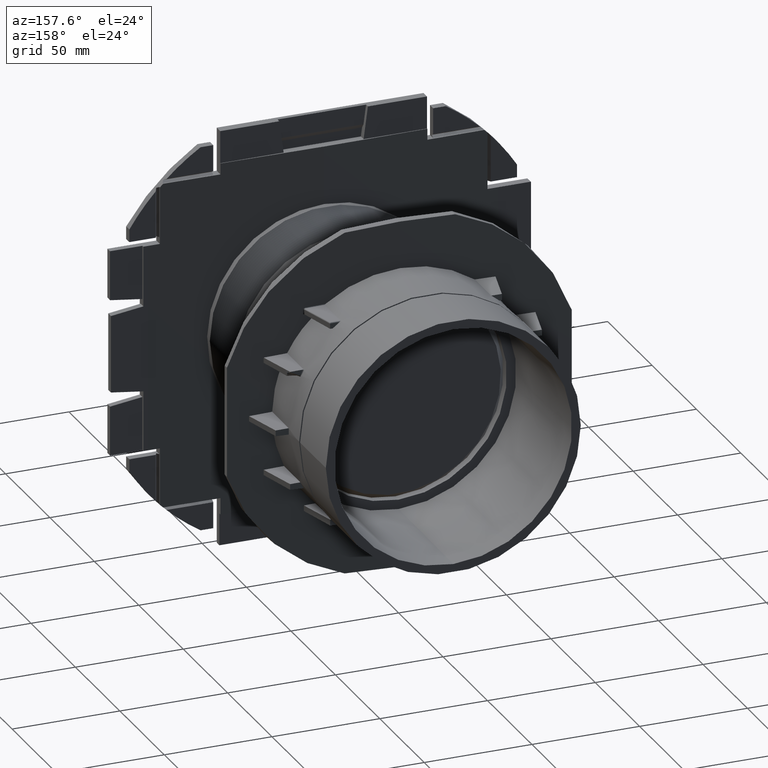
[diagram: clean part render]
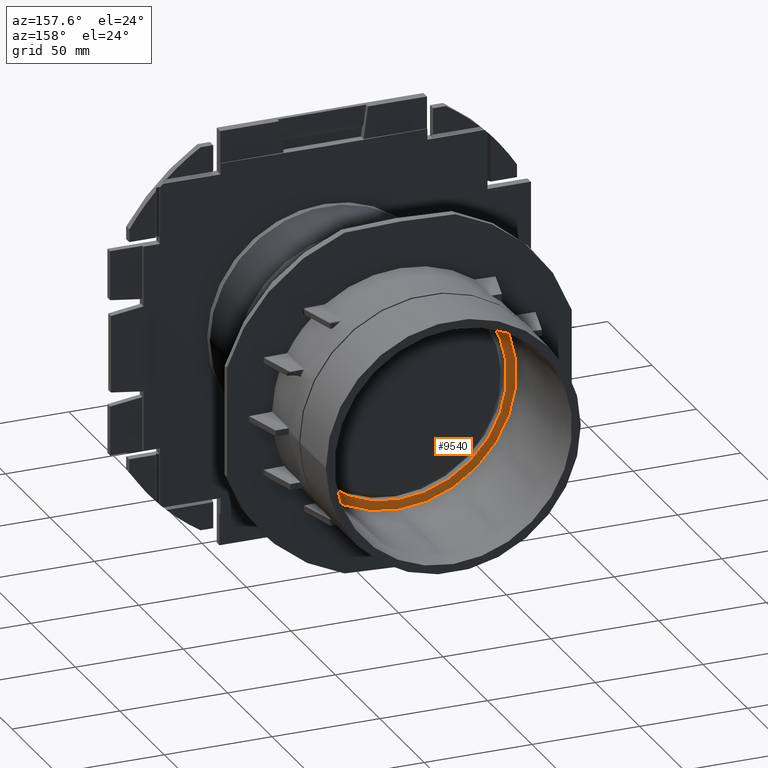
[diagram: same view with one face highlighted and labeled with its STEP entity id]
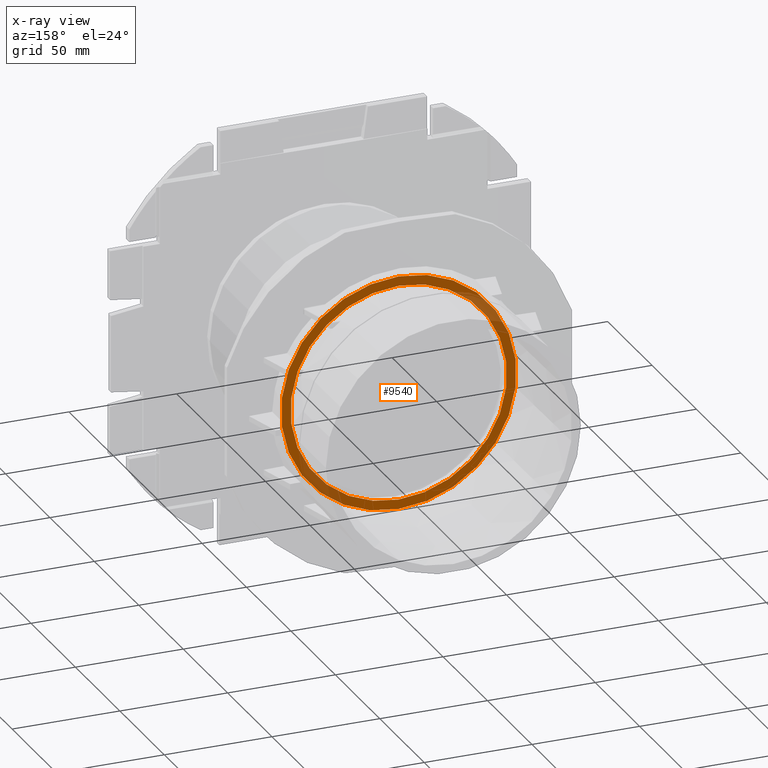
[diagram: x-ray of the same camera — body ghosted, the highlighted face saturated]
A machine part, auxiliary view. The second image highlights one B-rep face of the part: STEP entity #9540.
The next image is the same camera in x-ray: the body ghosted, the highlighted face saturated — about 16% of this face is hidden behind the body in this view.
In plain terms, the highlighted planar face has unit normal (0, 1, 0).
Its self-contained STEP definition (entity closure, byte-faithful):
#487=FACE_BOUND('',#1634,.T.);
#649=CIRCLE('',#10260,50.2145837402344);
#650=CIRCLE('',#10261,50.2145837402344);
#653=CIRCLE('',#10269,54.6132976308683);
#654=CIRCLE('',#10270,54.6132976308683);
#1123=FACE_OUTER_BOUND('',#1633,.T.);
#1633=EDGE_LOOP('',(#8182,#8183));
#1634=EDGE_LOOP('',(#8184,#8185));
#4255=VERTEX_POINT('',#18575);
#4256=VERTEX_POINT('',#18577);
#4258=VERTEX_POINT('',#18650);
#4259=VERTEX_POINT('',#18651);
#5573=EDGE_CURVE('',#4256,#4255,#649,.T.);
#5574=EDGE_CURVE('',#4255,#4256,#650,.T.);
#5580=EDGE_CURVE('',#4258,#4259,#653,.T.);
#5581=EDGE_CURVE('',#4259,#4258,#654,.T.);
#8182=ORIENTED_EDGE('',*,*,#5580,.F.);
#8183=ORIENTED_EDGE('',*,*,#5581,.F.);
#8184=ORIENTED_EDGE('',*,*,#5573,.T.);
#8185=ORIENTED_EDGE('',*,*,#5574,.T.);
#8572=PLANE('',#10268);
#9540=ADVANCED_FACE('',(#1123,#487),#8572,.T.);
#10260=AXIS2_PLACEMENT_3D('',#18578,#12512,#12513);
#10261=AXIS2_PLACEMENT_3D('',#18579,#12514,#12515);
#10268=AXIS2_PLACEMENT_3D('',#18649,#12530,#12531);
#10269=AXIS2_PLACEMENT_3D('',#18652,#12532,#12533);
#10270=AXIS2_PLACEMENT_3D('',#18653,#12534,#12535);
#12512=DIRECTION('center_axis',(0.,-1.,0.));
#12513=DIRECTION('ref_axis',(0.,0.,1.));
#12514=DIRECTION('center_axis',(0.,-1.,0.));
#12515=DIRECTION('ref_axis',(0.,0.,1.));
#12530=DIRECTION('center_axis',(0.,1.,0.));
#12531=DIRECTION('ref_axis',(0.,0.,1.));
#12532=DIRECTION('center_axis',(0.,-1.,0.));
#12533=DIRECTION('ref_axis',(0.,0.,1.));
#12534=DIRECTION('center_axis',(0.,-1.,0.));
#12535=DIRECTION('ref_axis',(0.,0.,1.));
#18575=CARTESIAN_POINT('',(-6.14951292479948E-15,2.77555756156289E-16,-50.2145837402344));
#18577=CARTESIAN_POINT('',(0.,-1.18638406132539E-17,50.2145837402344));
#18578=CARTESIAN_POINT('Origin',(0.,0.,0.));
#18579=CARTESIAN_POINT('Origin',(0.,0.,0.));
#18649=CARTESIAN_POINT('Origin',(2.73958011914664E-15,0.,1.0934791255157E-15));
#18650=CARTESIAN_POINT('',(0.,5.65417550265217E-16,54.6132976308683));
#18651=CARTESIAN_POINT('',(-6.68820001345245E-15,0.,-54.6132976308682));
#18652=CARTESIAN_POINT('Origin',(0.,5.55111512312578E-16,0.));
#18653=CARTESIAN_POINT('Origin',(0.,5.55111512312578E-16,0.));